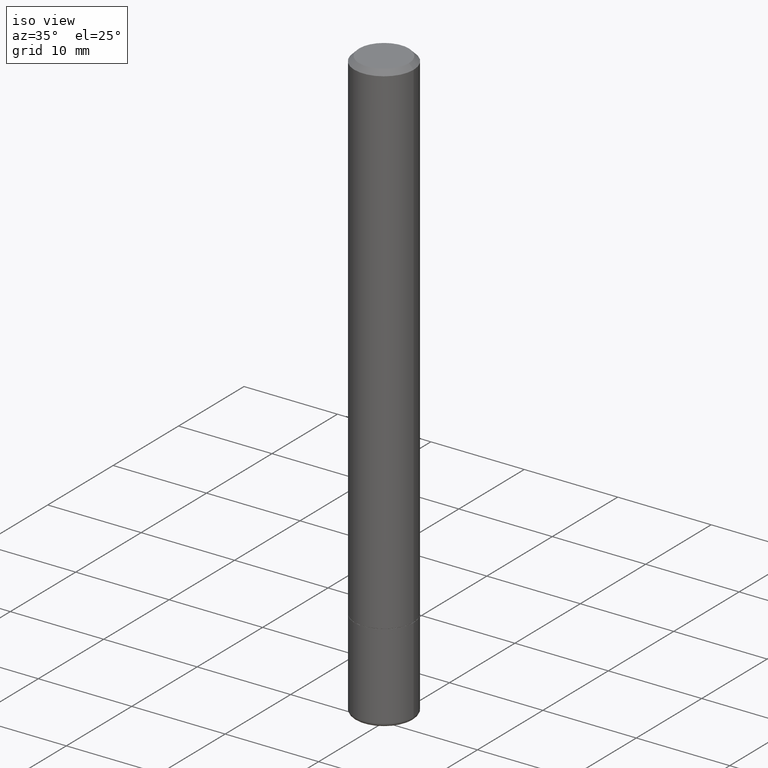
[diagram: clean part render]
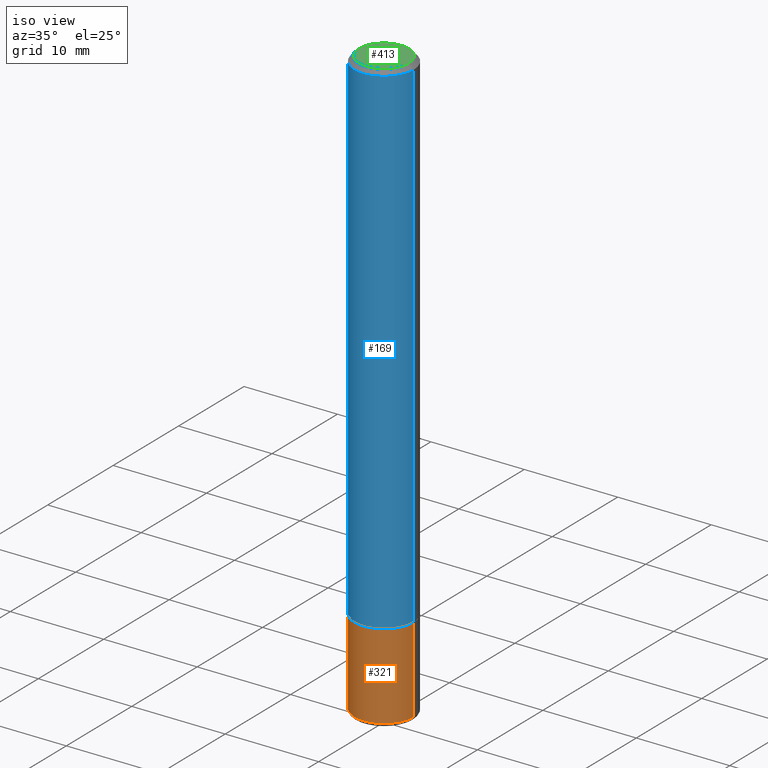
[diagram: same view with three faces highlighted in distinct colors, each labeled with its STEP entity id]
A machine part, iso view with three faces highlighted in distinct colors.
Their STEP definitions:

[orange] entity #321 — the highlighted cylindrical surface (edge-blend (fillet) strip) has radius 3.175 mm, axis along (-0, 0, 1).
#3 = EDGE_CURVE ( 'NONE', #170, #50, #188, .T. ) ;
#8 = ORIENTED_EDGE ( 'NONE', *, *, #52, .T. ) ;
#11 = ORIENTED_EDGE ( 'NONE', *, *, #211, .T. ) ;
#19 = DIRECTION ( 'NONE',  ( -2.445468806185136597E-29, 3.491481338843145583E-15, 1.000000000000000000 ) ) ;
#28 = ORIENTED_EDGE ( 'NONE', *, *, #78, .F. ) ;
#38 = DIRECTION ( 'NONE',  ( -2.445468806185136597E-29, 3.491481338843145583E-15, 1.000000000000000000 ) ) ;
#50 = VERTEX_POINT ( 'NONE', #416 ) ;
#52 = EDGE_CURVE ( 'NONE', #61, #50, #186, .T. ) ;
#56 = DIRECTION ( 'NONE',  ( -2.445468806185136597E-29, 3.491481338843145583E-15, 1.000000000000000000 ) ) ;
#61 = VERTEX_POINT ( 'NONE', #228 ) ;
#69 = DIRECTION ( 'NONE',  ( -2.445468806185136877E-29, 3.491481338843145188E-15, 1.000000000000000000 ) ) ;
#70 = FACE_OUTER_BOUND ( 'NONE', #130, .T. ) ;
#78 = EDGE_CURVE ( 'NONE', #481, #170, #112, .T. ) ;
#81 = VECTOR ( 'NONE', #453, 39.37007874015748143 ) ;
#85 = ORIENTED_EDGE ( 'NONE', *, *, #3, .F. ) ;
#112 = LINE ( 'NONE', #221, #484 ) ;
#130 = EDGE_LOOP ( 'NONE', ( #28, #11, #8, #85 ) ) ;
#143 = AXIS2_PLACEMENT_3D ( 'NONE', #283, #56, #168 ) ;
#167 = CARTESIAN_POINT ( 'NONE',  ( 6.076991380109446545E-29, -8.676333121198880578E-15, -2.485000571154037718 ) ) ;
#168 = DIRECTION ( 'NONE',  ( 1.000000000000000000, -6.982962677686269077E-15, 0.000000000000000000 ) ) ;
#170 = VERTEX_POINT ( 'NONE', #450 ) ;
#186 = LINE ( 'NONE', #408, #81 ) ;
#188 = CIRCLE ( 'NONE', #143, 0.1249999999999996253 ) ;
#211 = EDGE_CURVE ( 'NONE', #481, #61, #304, .T. ) ;
#221 = CARTESIAN_POINT ( 'NONE',  ( -0.1249999999999998335, 8.881784197001240490E-16, -6.148668862818623819E-30 ) ) ;
#228 = CARTESIAN_POINT ( 'NONE',  ( 0.1250000000000000278, -9.549203455909665495E-15, -2.485000571154037718 ) ) ;
#253 = CYLINDRICAL_SURFACE ( 'NONE', #465, 0.1249999999999998335 ) ;
#261 = CARTESIAN_POINT ( 'NONE',  ( 0.000000000000000000, 0.000000000000000000, 0.000000000000000000 ) ) ;
#283 = CARTESIAN_POINT ( 'NONE',  ( 5.196621213143416389E-29, -7.419397845041685201E-15, -2.125000000000000444 ) ) ;
#304 = CIRCLE ( 'NONE', #369, 0.1250000000000000278 ) ;
#318 = DIRECTION ( 'NONE',  ( 1.000000000000000000, -6.982962677686269077E-15, 0.000000000000000000 ) ) ;
#321 = ADVANCED_FACE ( 'NONE', ( #70 ), #253, .T. ) ;
#367 = DIRECTION ( 'NONE',  ( 1.000000000000000000, -6.982962677686266711E-15, 4.876176775795935793E-29 ) ) ;
#369 = AXIS2_PLACEMENT_3D ( 'NONE', #167, #19, #318 ) ;
#408 = CARTESIAN_POINT ( 'NONE',  ( 0.1249999999999998335, -8.728703347107821555E-16, 6.095220969744911333E-30 ) ) ;
#416 = CARTESIAN_POINT ( 'NONE',  ( 0.1249999999999996253, -8.292268179752466962E-15, -2.125000000000000444 ) ) ;
#431 = CARTESIAN_POINT ( 'NONE',  ( -0.1250000000000000278, -7.159687063420157657E-15, -2.485000571154037718 ) ) ;
#450 = CARTESIAN_POINT ( 'NONE',  ( -0.1249999999999996253, -7.159687063420159235E-15, -2.125000000000000444 ) ) ;
#453 = DIRECTION ( 'NONE',  ( -2.445468806185136877E-29, 3.491481338843145188E-15, 1.000000000000000000 ) ) ;
#465 = AXIS2_PLACEMENT_3D ( 'NONE', #261, #38, #367 ) ;
#481 = VERTEX_POINT ( 'NONE', #431 ) ;
#484 = VECTOR ( 'NONE', #69, 39.37007874015748143 ) ;

[blue] entity #169 — the highlighted cylindrical surface (edge-blend (fillet) strip) has radius 3.175 mm, axis along (-0, 0, 1).
#2 = CARTESIAN_POINT ( 'NONE',  ( 4.890937612370295054E-31, -6.982962677686322424E-17, -0.02000000000000009062 ) ) ;
#21 = CIRCLE ( 'NONE', #436, 0.1249999999999993477 ) ;
#31 = CARTESIAN_POINT ( 'NONE',  ( 5.194175744337230786E-29, -7.415906363702842194E-15, -2.124000000000000554 ) ) ;
#35 = CARTESIAN_POINT ( 'NONE',  ( -0.1249999999999993477, 8.030407079339155047E-16, -0.02000000000000009062 ) ) ;
#36 = LINE ( 'NONE', #185, #266 ) ;
#43 = CARTESIAN_POINT ( 'NONE',  ( -0.1249999999999994865, 8.881784197001215839E-16, -6.148668862818606303E-30 ) ) ;
#44 = EDGE_CURVE ( 'NONE', #324, #134, #21, .T. ) ;
#66 = DIRECTION ( 'NONE',  ( 1.000000000000000000, -6.982962677686265922E-15, 4.876176775795935793E-29 ) ) ;
#100 = VERTEX_POINT ( 'NONE', #402 ) ;
#102 = DIRECTION ( 'NONE',  ( 1.000000000000000000, -6.982962677686269077E-15, 0.000000000000000000 ) ) ;
#134 = VERTEX_POINT ( 'NONE', #486 ) ;
#137 = CARTESIAN_POINT ( 'NONE',  ( 0.1249999999999996253, -8.288776698413623955E-15, -2.124000000000000554 ) ) ;
#146 = DIRECTION ( 'NONE',  ( -2.445468806185136877E-29, 3.491481338843145188E-15, 1.000000000000000000 ) ) ;
#150 = EDGE_CURVE ( 'NONE', #358, #134, #36, .T. ) ;
#169 = ADVANCED_FACE ( 'NONE', ( #340 ), #230, .T. ) ;
#181 = ORIENTED_EDGE ( 'NONE', *, *, #44, .F. ) ;
#185 = CARTESIAN_POINT ( 'NONE',  ( 0.1249999999999994865, -8.728703347107796903E-16, 6.095220969744894518E-30 ) ) ;
#189 = AXIS2_PLACEMENT_3D ( 'NONE', #31, #454, #102 ) ;
#195 = DIRECTION ( 'NONE',  ( -2.445468806185136877E-29, 3.491481338843145188E-15, 1.000000000000000000 ) ) ;
#196 = CARTESIAN_POINT ( 'NONE',  ( 0.000000000000000000, 0.000000000000000000, 0.000000000000000000 ) ) ;
#225 = DIRECTION ( 'NONE',  ( 1.000000000000000000, -6.982962677686265922E-15, 0.000000000000000000 ) ) ;
#230 = CYLINDRICAL_SURFACE ( 'NONE', #391, 0.1249999999999994865 ) ;
#245 = VECTOR ( 'NONE', #195, 39.37007874015748143 ) ;
#259 = ORIENTED_EDGE ( 'NONE', *, *, #150, .T. ) ;
#266 = VECTOR ( 'NONE', #146, 39.37007874015748143 ) ;
#293 = ORIENTED_EDGE ( 'NONE', *, *, #455, .F. ) ;
#310 = EDGE_LOOP ( 'NONE', ( #293, #373, #259, #181 ) ) ;
#319 = CIRCLE ( 'NONE', #189, 0.1249999999999996253 ) ;
#324 = VERTEX_POINT ( 'NONE', #35 ) ;
#334 = DIRECTION ( 'NONE',  ( -2.445468806185136597E-29, 3.491481338843145583E-15, 1.000000000000000000 ) ) ;
#340 = FACE_OUTER_BOUND ( 'NONE', #310, .T. ) ;
#358 = VERTEX_POINT ( 'NONE', #137 ) ;
#373 = ORIENTED_EDGE ( 'NONE', *, *, #394, .T. ) ;
#391 = AXIS2_PLACEMENT_3D ( 'NONE', #196, #462, #66 ) ;
#394 = EDGE_CURVE ( 'NONE', #100, #358, #319, .T. ) ;
#402 = CARTESIAN_POINT ( 'NONE',  ( -0.1249999999999996253, -2.854689575539726725E-15, -2.124000000000000554 ) ) ;
#425 = LINE ( 'NONE', #43, #245 ) ;
#436 = AXIS2_PLACEMENT_3D ( 'NONE', #2, #334, #225 ) ;
#454 = DIRECTION ( 'NONE',  ( -2.445468806185136597E-29, 3.491481338843145583E-15, 1.000000000000000000 ) ) ;
#455 = EDGE_CURVE ( 'NONE', #100, #324, #425, .T. ) ;
#462 = DIRECTION ( 'NONE',  ( -2.445468806185136597E-29, 3.491481338843145583E-15, 1.000000000000000000 ) ) ;
#486 = CARTESIAN_POINT ( 'NONE',  ( 0.1249999999999993477, -9.273918764983002075E-16, -0.02000000000000009062 ) ) ;

[green] entity #413 — the highlighted planar face has unit normal (0, -0, -1).
#22 = EDGE_LOOP ( 'NONE', ( #412, #219 ) ) ;
#108 = CARTESIAN_POINT ( 'NONE',  ( 1.043851414335219781E-45, -1.490343170380447145E-31, -4.268512490100411279E-17 ) ) ;
#115 = CARTESIAN_POINT ( 'NONE',  ( 1.043851414335219781E-45, -1.490343170380447145E-31, -4.268512490100411279E-17 ) ) ;
#118 = DIRECTION ( 'NONE',  ( 2.438088387897960049E-29, -3.491481338843145188E-15, -1.000000000000000000 ) ) ;
#147 = VERTEX_POINT ( 'NONE', #162 ) ;
#154 = AXIS2_PLACEMENT_3D ( 'NONE', #108, #227, #264 ) ;
#155 = VERTEX_POINT ( 'NONE', #335 ) ;
#156 = PLANE ( 'NONE',  #338 ) ;
#162 = CARTESIAN_POINT ( 'NONE',  ( 0.1049999999999993577, -8.238720831321533257E-16, -4.268512490099867088E-17 ) ) ;
#205 = CARTESIAN_POINT ( 'NONE',  ( 7.332110811570533898E-16, 0.1049999999999993577, -3.879481030290301102E-16 ) ) ;
#209 = CIRCLE ( 'NONE', #291, 0.1049999999999993577 ) ;
#219 = ORIENTED_EDGE ( 'NONE', *, *, #444, .T. ) ;
#227 = DIRECTION ( 'NONE',  ( -2.445468806185136597E-29, 3.491481338843145583E-15, 1.000000000000000000 ) ) ;
#249 = EDGE_CURVE ( 'NONE', #155, #147, #393, .T. ) ;
#264 = DIRECTION ( 'NONE',  ( 1.000000000000000000, -6.982962677686267499E-15, 4.874400871621268483E-29 ) ) ;
#280 = DIRECTION ( 'NONE',  ( -1.000000000000000000, 6.982962677686265922E-15, -4.876176775795935793E-29 ) ) ;
#291 = AXIS2_PLACEMENT_3D ( 'NONE', #115, #379, #469 ) ;
#335 = CARTESIAN_POINT ( 'NONE',  ( -0.1049999999999993577, 7.681258945454844472E-16, -4.268512490100935748E-17 ) ) ;
#338 = AXIS2_PLACEMENT_3D ( 'NONE', #205, #118, #280 ) ;
#379 = DIRECTION ( 'NONE',  ( -2.445468806185136597E-29, 3.491481338843145583E-15, 1.000000000000000000 ) ) ;
#393 = CIRCLE ( 'NONE', #154, 0.1049999999999993577 ) ;
#412 = ORIENTED_EDGE ( 'NONE', *, *, #249, .T. ) ;
#413 = ADVANCED_FACE ( 'NONE', ( #471 ), #156, .F. ) ;
#444 = EDGE_CURVE ( 'NONE', #147, #155, #209, .T. ) ;
#469 = DIRECTION ( 'NONE',  ( 1.000000000000000000, -6.982962677686267499E-15, 4.874400871621268483E-29 ) ) ;
#471 = FACE_OUTER_BOUND ( 'NONE', #22, .T. ) ;